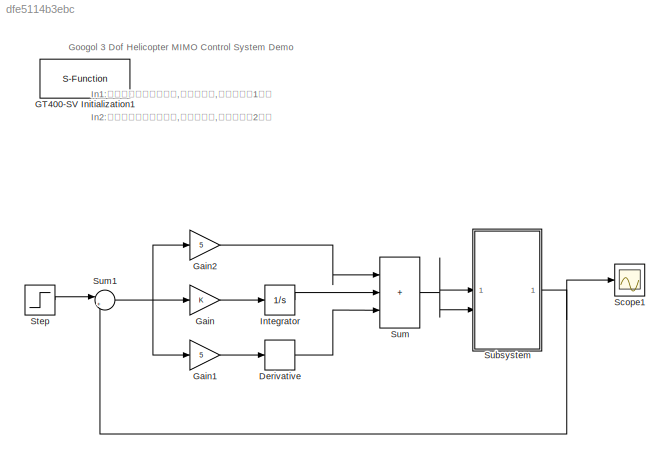
MODEL slx_dfe5114b3ebc
KIND model
CONFIG AbsTol = auto
CONFIG EnableMultiTasking = off
CONFIG FixedStep = 0.005
CONFIG MaxStep = auto
CONFIG MinStep = auto
CONFIG RelTol = 1e-3
CONFIG SampleTimeConstraint = Unconstrained
CONFIG SolverName = ode1
CONFIG StartTime = 0.0
CONFIG StopTime = inf
BLOCK [Derivative] Derivative
BLOCK [S-Function] GT400-SV Initialization1
  EnableBusSupport = off
  FunctionName = Initialize
  Parameters = openloop
  Priority = 0
  SFcnIsStateOwnerBlock = off
  SFunctionDeploymentMode = off
BLOCK [Gain] Gain
BLOCK [Gain] Gain1
  Gain = 5
BLOCK [Gain] Gain2
  Gain = 5
BLOCK [Integrator] Integrator
BLOCK [Scope] Scope1
  Floating = off
  NumInputPorts = 1
  ScopeSpecificationString = Simulink.scopes.TimeScopeBlockCfg('CurrentConfiguration', extmgr.ConfigurationSet(extmgr.Configuration('Core','General UI',true),extmgr.Configuration('Core','Source UI',true),extmgr.Configuration('Sources','WiredSimulink',true,'DataLogging',true,'DataLoggingVariableName','ScopeData1','DataLoggingSaveFormat','StructureWithTime','DataLoggingMaxPoints','50000000','DataLoggingLimitDataPoints',true,'Da...<+1695ch>
BLOCK [Step] Step
  After = 0.4
  SampleTime = 0
  Time = 0
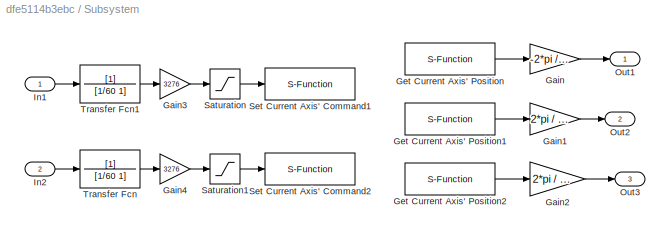
BLOCK [SubSystem] Subsystem
BLOCK [Gain] Subsystem/Gain
  Gain = -2*pi / 2400
  OutDataTypeStr = Inherit: Same as input
  ParamDataTypeStr = Inherit: Same as input
  SaturateOnIntegerOverflow = on
BLOCK [Gain] Subsystem/Gain1
  Gain = 2*pi / 2400
  OutDataTypeStr = Inherit: Same as input
  ParamDataTypeStr = Inherit: Same as input
  SaturateOnIntegerOverflow = on
BLOCK [Gain] Subsystem/Gain2
  Gain = 2*pi / 2400
  OutDataTypeStr = Inherit: Same as input
  ParamDataTypeStr = Inherit: Same as input
  SaturateOnIntegerOverflow = on
BLOCK [Gain] Subsystem/Gain3
  Gain = 3276
BLOCK [Gain] Subsystem/Gain4
  Gain = 3276
BLOCK [S-Function] Subsystem/Get Current Axis' Position
  EnableBusSupport = off
  FunctionName = GetPos
  Parameters = axis
  Priority = 1
  SFcnIsStateOwnerBlock = off
  SFunctionDeploymentMode = off
BLOCK [S-Function] Subsystem/Get Current Axis' Position1
  EnableBusSupport = off
  FunctionName = GetPos
  Parameters = axis
  Priority = 1
  SFcnIsStateOwnerBlock = off
  SFunctionDeploymentMode = off
BLOCK [S-Function] Subsystem/Get Current Axis' Position2
  EnableBusSupport = off
  FunctionName = GetPos
  Parameters = axis
  Priority = 1
  SFcnIsStateOwnerBlock = off
  SFunctionDeploymentMode = off
BLOCK [Inport] Subsystem/In1
BLOCK [Inport] Subsystem/In2
  Port = 2
BLOCK [Outport] Subsystem/Out1
BLOCK [Outport] Subsystem/Out2
  Port = 2
BLOCK [Outport] Subsystem/Out3
  Port = 3
BLOCK [Saturate] Subsystem/Saturation
  LowerLimit = 0
  UpperLimit = 9000
BLOCK [Saturate] Subsystem/Saturation1
  LowerLimit = 0
  UpperLimit = 9000
BLOCK [S-Function] Subsystem/Set Current Axis' Command1
  EnableBusSupport = off
  FunctionName = SetMtrCmd
  Parameters = axis
  Priority = 1
  SFcnIsStateOwnerBlock = off
  SFunctionDeploymentMode = off
BLOCK [S-Function] Subsystem/Set Current Axis' Command2
  EnableBusSupport = off
  FunctionName = SetMtrCmd
  Parameters = axis
  Priority = 1
  SFcnIsStateOwnerBlock = off
  SFunctionDeploymentMode = off
BLOCK [TransferFcn] Subsystem/Transfer Fcn
  Denominator = [1/60 1]
BLOCK [TransferFcn] Subsystem/Transfer Fcn1
  Denominator = [1/60 1]
BLOCK [Sum] Sum
  IconShape = rectangular
  Inputs = |+++
BLOCK [Sum] Sum1
  Inputs = |+-
ANNOTATION (root): Googol 3 Dof Helicopter MIMO Control System Demo
ANNOTATION (root): In1:从机尾往螺旋桨方向看,右侧螺旋桨,对应手册的1号桨 In2:从机尾往螺旋桨方向看,左侧螺旋桨,对应手册的2号桨
LINE Derivative:1 -> Sum:3
LINE Gain1:1 -> Derivative:1
LINE Gain2:1 -> Sum:1
LINE Gain:1 -> Integrator:1
LINE Integrator:1 -> Sum:2
LINE Step:1 -> Sum1:1
LINE Subsystem/Gain1:1 -> Subsystem/Out2:1
LINE Subsystem/Gain2:1 -> Subsystem/Out3:1
LINE Subsystem/Gain3:1 -> Subsystem/Saturation:1
LINE Subsystem/Gain4:1 -> Subsystem/Saturation1:1
LINE Subsystem/Gain:1 -> Subsystem/Out1:1
LINE Subsystem/Get Current Axis' Position1:1 -> Subsystem/Gain1:1
LINE Subsystem/Get Current Axis' Position2:1 -> Subsystem/Gain2:1
LINE Subsystem/Get Current Axis' Position:1 -> Subsystem/Gain:1
LINE Subsystem/In1:1 -> Subsystem/Transfer Fcn1:1
LINE Subsystem/In2:1 -> Subsystem/Transfer Fcn:1
LINE Subsystem/Saturation1:1 -> Subsystem/Set Current Axis' Command2:1
LINE Subsystem/Saturation:1 -> Subsystem/Set Current Axis' Command1:1
LINE Subsystem/Transfer Fcn1:1 -> Subsystem/Gain3:1
LINE Subsystem/Transfer Fcn:1 -> Subsystem/Gain4:1
NET Subsystem:1 -> Scope1:1, Sum1:2
NET Sum1:1 -> Gain1:1, Gain2:1, Gain:1
NET Sum:1 -> Subsystem:1, Subsystem:2
note: NET lines group one-source signal fan-out (src -> all destinations, sorted); 1:1 wires keep LINE
